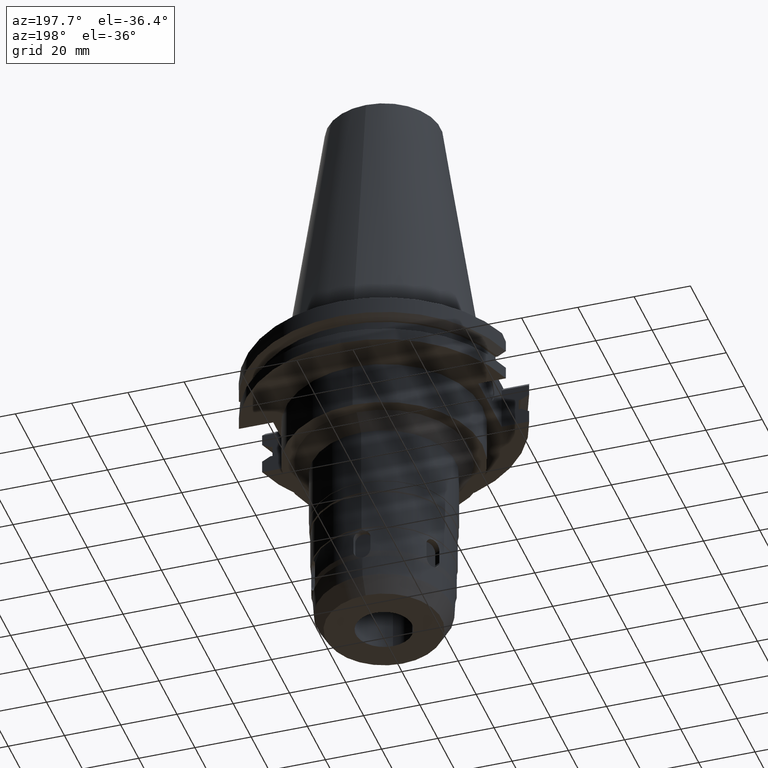
[diagram: clean part render]
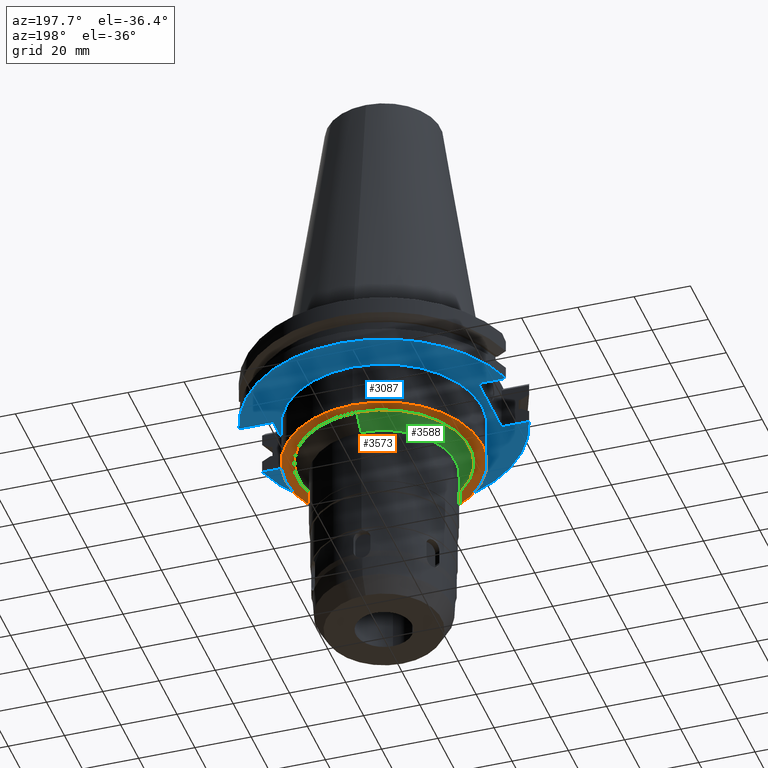
[diagram: same view with three faces highlighted in distinct colors, each labeled with its STEP entity id]
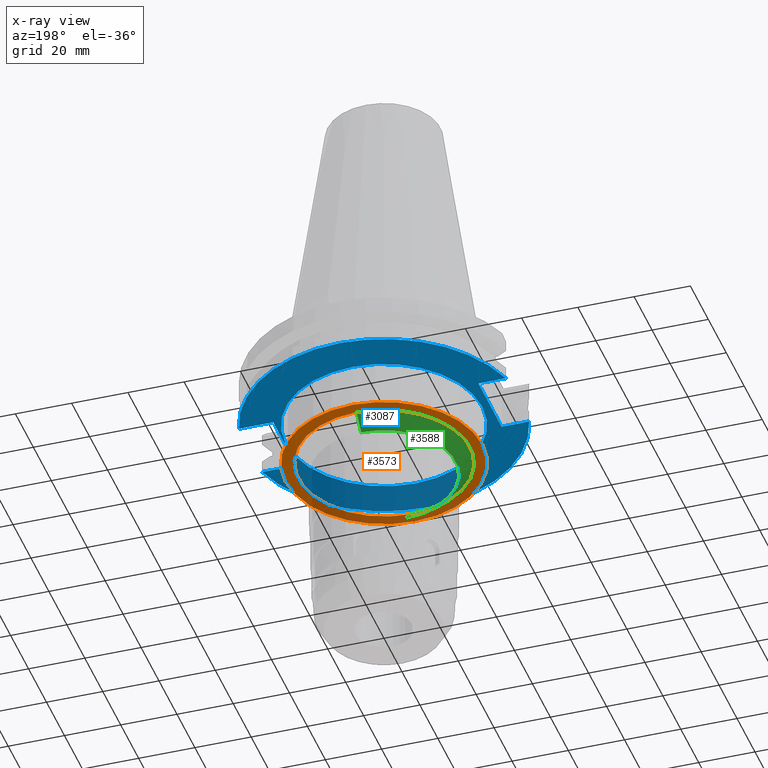
[diagram: x-ray of the same camera — body ghosted, the three highlighted faces saturated]
A machine part, auxiliary view with three faces highlighted in distinct colors.
The next image is the same camera in x-ray (body ghosted, the three faces saturated) — at least one of them is partly hidden behind the body in this view.
Their STEP definitions:

[orange] entity #3573 — the highlighted planar face has unit normal (0, 0, -1).
#862=CARTESIAN_POINT('',(0.E0,2.595393961433E-14,-3.5E1));
#863=DIRECTION('',(0.E0,0.E0,1.E0));
#864=DIRECTION('',(0.E0,-1.E0,0.E0));
#865=AXIS2_PLACEMENT_3D('',#862,#863,#864);
#870=CARTESIAN_POINT('',(0.E0,2.595393961433E-14,-3.5E1));
#871=DIRECTION('',(0.E0,0.E0,1.E0));
#872=DIRECTION('',(0.E0,1.E0,0.E0));
#873=AXIS2_PLACEMENT_3D('',#870,#871,#872);
#878=CARTESIAN_POINT('',(0.E0,0.E0,-3.5E1));
#879=DIRECTION('',(0.E0,0.E0,-1.E0));
#880=DIRECTION('',(0.E0,-1.E0,0.E0));
#881=AXIS2_PLACEMENT_3D('',#878,#879,#880);
#886=CARTESIAN_POINT('',(0.E0,0.E0,-3.5E1));
#887=DIRECTION('',(0.E0,0.E0,-1.E0));
#888=DIRECTION('',(0.E0,1.E0,0.E0));
#889=AXIS2_PLACEMENT_3D('',#886,#887,#888);
#2748=CARTESIAN_POINT('',(0.E0,3.05E1,-3.5E1));
#2749=VERTEX_POINT('',#2748);
#2750=CARTESIAN_POINT('',(0.E0,-3.05E1,-3.5E1));
#2751=VERTEX_POINT('',#2750);
#2752=CARTESIAN_POINT('',(0.E0,-3.4925E1,-3.5E1));
#2753=CARTESIAN_POINT('',(0.E0,3.4925E1,-3.5E1));
#2754=VERTEX_POINT('',#2752);
#2755=VERTEX_POINT('',#2753);
#3558=CARTESIAN_POINT('',(0.E0,0.E0,-3.5E1));
#3559=DIRECTION('',(0.E0,0.E0,-1.E0));
#3560=DIRECTION('',(0.E0,-1.E0,0.E0));
#3561=AXIS2_PLACEMENT_3D('',#3558,#3559,#3560);
#3562=PLANE('',#3561);
#3563=ORIENTED_EDGE('',*,*,#3551,.T.);
#3564=ORIENTED_EDGE('',*,*,#3540,.T.);
#3565=EDGE_LOOP('',(#3563,#3564));
#3566=FACE_OUTER_BOUND('',#3565,.F.);
#3568=ORIENTED_EDGE('',*,*,#3567,.T.);
#3570=ORIENTED_EDGE('',*,*,#3569,.T.);
#3571=EDGE_LOOP('',(#3568,#3570));
#3572=FACE_BOUND('',#3571,.F.);
#866=CIRCLE('',#865,3.4925E1);
#874=CIRCLE('',#873,3.4925E1);
#882=CIRCLE('',#881,3.05E1);
#890=CIRCLE('',#889,3.05E1);
#3540=EDGE_CURVE('',#2755,#2754,#874,.T.);
#3551=EDGE_CURVE('',#2754,#2755,#866,.T.);
#3567=EDGE_CURVE('',#2751,#2749,#882,.T.);
#3569=EDGE_CURVE('',#2749,#2751,#890,.T.);
#3573=ADVANCED_FACE('',(#3566,#3572),#3562,.T.);

[blue] entity #3087 — the highlighted planar face has unit normal (0, 0, -1).
#170=DIRECTION('',(0.E0,-1.E0,0.E0));
#171=VECTOR('',#170,2.591E1);
#172=CARTESIAN_POINT('',(3.527E1,1.2955E1,-1.905E1));
#173=LINE('',#172,#171);
#205=DIRECTION('',(1.E0,1.455229645531E-14,0.E0));
#206=VECTOR('',#205,1.220671146204E1);
#207=CARTESIAN_POINT('',(3.527E1,1.2955E1,-1.905E1));
#208=LINE('',#207,#206);
#212=CARTESIAN_POINT('',(0.E0,2.595393961433E-14,-1.905E1));
#213=DIRECTION('',(0.E0,0.E0,1.E0));
#214=DIRECTION('',(9.647287063661E-1,2.632461264923E-1,0.E0));
#215=AXIS2_PLACEMENT_3D('',#212,#213,#214);
#220=CARTESIAN_POINT('',(0.E0,2.595393961433E-14,-1.905E1));
#221=DIRECTION('',(0.E0,0.E0,1.E0));
#222=DIRECTION('',(0.E0,1.E0,0.E0));
#223=AXIS2_PLACEMENT_3D('',#220,#221,#222);
#228=DIRECTION('',(-1.E0,-1.795085297572E-14,0.E0));
#229=VECTOR('',#228,9.796711462041E0);
#230=CARTESIAN_POINT('',(-3.768E1,-1.2955E1,-1.905E1));
#231=LINE('',#230,#229);
#235=CARTESIAN_POINT('',(0.E0,2.595393961433E-14,-1.905E1));
#236=DIRECTION('',(0.E0,0.E0,1.E0));
#237=DIRECTION('',(-9.647287063661E-1,-2.632461264923E-1,0.E0));
#238=AXIS2_PLACEMENT_3D('',#235,#236,#237);
#243=CARTESIAN_POINT('',(0.E0,2.595393961433E-14,-1.905E1));
#244=DIRECTION('',(0.E0,0.E0,1.E0));
#245=DIRECTION('',(0.E0,-1.E0,0.E0));
#246=AXIS2_PLACEMENT_3D('',#243,#244,#245);
#251=CARTESIAN_POINT('',(0.E0,2.595393961433E-14,-1.905E1));
#252=DIRECTION('',(0.E0,0.E0,-1.E0));
#253=DIRECTION('',(0.E0,-1.E0,0.E0));
#254=AXIS2_PLACEMENT_3D('',#251,#252,#253);
#259=CARTESIAN_POINT('',(0.E0,2.595393961433E-14,-1.905E1));
#260=DIRECTION('',(0.E0,0.E0,-1.E0));
#261=DIRECTION('',(0.E0,1.E0,0.E0));
#262=AXIS2_PLACEMENT_3D('',#259,#260,#261);
#318=DIRECTION('',(0.E0,1.E0,0.E0));
#319=VECTOR('',#318,2.591E1);
#320=CARTESIAN_POINT('',(-3.768E1,-1.2955E1,-1.905E1));
#321=LINE('',#320,#319);
#355=DIRECTION('',(-1.E0,1.813217472295E-14,0.E0));
#356=VECTOR('',#355,9.796711462041E0);
#357=CARTESIAN_POINT('',(-3.768E1,1.2955E1,-1.905E1));
#358=LINE('',#357,#356);
#605=DIRECTION('',(1.E0,-1.411572756165E-14,0.E0));
#606=VECTOR('',#605,1.220671146204E1);
#607=CARTESIAN_POINT('',(3.527E1,-1.2955E1,-1.905E1));
#608=LINE('',#607,#606);
#2756=CARTESIAN_POINT('',(0.E0,3.4925E1,-1.905E1));
#2757=VERTEX_POINT('',#2756);
#2758=CARTESIAN_POINT('',(0.E0,-3.4925E1,-1.905E1));
#2759=VERTEX_POINT('',#2758);
#2760=CARTESIAN_POINT('',(3.527E1,1.2955E1,-1.905E1));
#2761=CARTESIAN_POINT('',(3.527E1,-1.2955E1,-1.905E1));
#2762=VERTEX_POINT('',#2760);
#2763=VERTEX_POINT('',#2761);
#2764=CARTESIAN_POINT('',(4.747671146204E1,1.2955E1,-1.905E1));
#2765=VERTEX_POINT('',#2764);
#2766=CARTESIAN_POINT('',(0.E0,4.92125E1,-1.905E1));
#2767=CARTESIAN_POINT('',(-4.747671146204E1,1.2955E1,-1.905E1));
#2768=VERTEX_POINT('',#2766);
#2769=VERTEX_POINT('',#2767);
#2770=CARTESIAN_POINT('',(-3.768E1,1.2955E1,-1.905E1));
#2771=VERTEX_POINT('',#2770);
#2772=CARTESIAN_POINT('',(-3.768E1,-1.2955E1,-1.905E1));
#2773=VERTEX_POINT('',#2772);
#2774=CARTESIAN_POINT('',(-4.747671146204E1,-1.2955E1,-1.905E1));
#2775=VERTEX_POINT('',#2774);
#2776=CARTESIAN_POINT('',(0.E0,-4.92125E1,-1.905E1));
#2777=CARTESIAN_POINT('',(4.747671146204E1,-1.2955E1,-1.905E1));
#2778=VERTEX_POINT('',#2776);
#2779=VERTEX_POINT('',#2777);
#3055=CARTESIAN_POINT('',(0.E0,0.E0,-1.905E1));
#3056=DIRECTION('',(0.E0,0.E0,-1.E0));
#3057=DIRECTION('',(0.E0,-1.E0,0.E0));
#3058=AXIS2_PLACEMENT_3D('',#3055,#3056,#3057);
#3059=PLANE('',#3058);
#3060=ORIENTED_EDGE('',*,*,#3041,.F.);
#3062=ORIENTED_EDGE('',*,*,#3061,.T.);
#3064=ORIENTED_EDGE('',*,*,#3063,.T.);
#3066=ORIENTED_EDGE('',*,*,#3065,.T.);
#3068=ORIENTED_EDGE('',*,*,#3067,.F.);
#3070=ORIENTED_EDGE('',*,*,#3069,.F.);
#3072=ORIENTED_EDGE('',*,*,#3071,.T.);
#3074=ORIENTED_EDGE('',*,*,#3073,.T.);
#3076=ORIENTED_EDGE('',*,*,#3075,.T.);
#3078=ORIENTED_EDGE('',*,*,#3077,.F.);
#3079=EDGE_LOOP('',(#3060,#3062,#3064,#3066,#3068,#3070,#3072,#3074,#3076,
#3078));
#3080=FACE_OUTER_BOUND('',#3079,.F.);
#3082=ORIENTED_EDGE('',*,*,#3081,.T.);
#3084=ORIENTED_EDGE('',*,*,#3083,.T.);
#3085=EDGE_LOOP('',(#3082,#3084));
#3086=FACE_BOUND('',#3085,.F.);
#216=CIRCLE('',#215,4.92125E1);
#224=CIRCLE('',#223,4.92125E1);
#239=CIRCLE('',#238,4.92125E1);
#247=CIRCLE('',#246,4.92125E1);
#255=CIRCLE('',#254,3.4925E1);
#263=CIRCLE('',#262,3.4925E1);
#3041=EDGE_CURVE('',#2762,#2763,#173,.T.);
#3061=EDGE_CURVE('',#2762,#2765,#208,.T.);
#3063=EDGE_CURVE('',#2765,#2768,#216,.T.);
#3065=EDGE_CURVE('',#2768,#2769,#224,.T.);
#3067=EDGE_CURVE('',#2771,#2769,#358,.T.);
#3069=EDGE_CURVE('',#2773,#2771,#321,.T.);
#3071=EDGE_CURVE('',#2773,#2775,#231,.T.);
#3073=EDGE_CURVE('',#2775,#2778,#239,.T.);
#3075=EDGE_CURVE('',#2778,#2779,#247,.T.);
#3077=EDGE_CURVE('',#2763,#2779,#608,.T.);
#3081=EDGE_CURVE('',#2759,#2757,#255,.T.);
#3083=EDGE_CURVE('',#2757,#2759,#263,.T.);
#3087=ADVANCED_FACE('',(#3080,#3086),#3059,.T.);

[green] entity #3588 — the highlighted conical surface has half-angle 45 deg.
#878=CARTESIAN_POINT('',(0.E0,0.E0,-3.5E1));
#879=DIRECTION('',(0.E0,0.E0,-1.E0));
#880=DIRECTION('',(0.E0,-1.E0,0.E0));
#881=AXIS2_PLACEMENT_3D('',#878,#879,#880);
#894=DIRECTION('',(0.E0,7.071067811865E-1,-7.071067811865E-1));
#895=VECTOR('',#894,7.071067811865E0);
#896=CARTESIAN_POINT('',(0.E0,-3.05E1,-3.5E1));
#897=LINE('',#896,#895);
#901=CARTESIAN_POINT('',(0.E0,0.E0,-4.E1));
#902=DIRECTION('',(0.E0,0.E0,-1.E0));
#903=DIRECTION('',(0.E0,-1.E0,0.E0));
#904=AXIS2_PLACEMENT_3D('',#901,#902,#903);
#909=DIRECTION('',(0.E0,-7.071067811865E-1,-7.071067811865E-1));
#910=VECTOR('',#909,7.071067811865E0);
#911=CARTESIAN_POINT('',(0.E0,3.05E1,-3.5E1));
#912=LINE('',#911,#910);
#2744=CARTESIAN_POINT('',(0.E0,2.55E1,-4.E1));
#2745=VERTEX_POINT('',#2744);
#2746=CARTESIAN_POINT('',(0.E0,-2.55E1,-4.E1));
#2747=VERTEX_POINT('',#2746);
#2748=CARTESIAN_POINT('',(0.E0,3.05E1,-3.5E1));
#2749=VERTEX_POINT('',#2748);
#2750=CARTESIAN_POINT('',(0.E0,-3.05E1,-3.5E1));
#2751=VERTEX_POINT('',#2750);
#3574=CARTESIAN_POINT('',(0.E0,0.E0,-3.75E1));
#3575=DIRECTION('',(0.E0,0.E0,1.E0));
#3576=DIRECTION('',(0.E0,1.E0,0.E0));
#3577=AXIS2_PLACEMENT_3D('',#3574,#3575,#3576);
#3578=CONICAL_SURFACE('',#3577,2.8E1,4.5E1);
#3580=ORIENTED_EDGE('',*,*,#3579,.F.);
#3581=ORIENTED_EDGE('',*,*,#3567,.F.);
#3583=ORIENTED_EDGE('',*,*,#3582,.T.);
#3585=ORIENTED_EDGE('',*,*,#3584,.T.);
#3586=EDGE_LOOP('',(#3580,#3581,#3583,#3585));
#3587=FACE_OUTER_BOUND('',#3586,.F.);
#882=CIRCLE('',#881,3.05E1);
#905=CIRCLE('',#904,2.55E1);
#3567=EDGE_CURVE('',#2751,#2749,#882,.T.);
#3579=EDGE_CURVE('',#2749,#2745,#912,.T.);
#3582=EDGE_CURVE('',#2751,#2747,#897,.T.);
#3584=EDGE_CURVE('',#2747,#2745,#905,.T.);
#3588=ADVANCED_FACE('',(#3587),#3578,.T.);